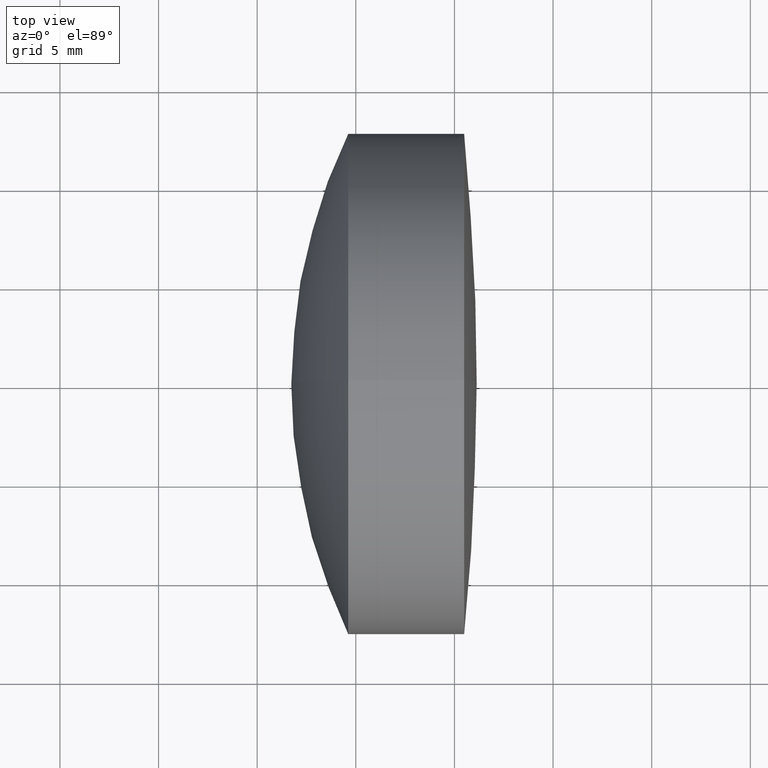
[diagram: clean part render]
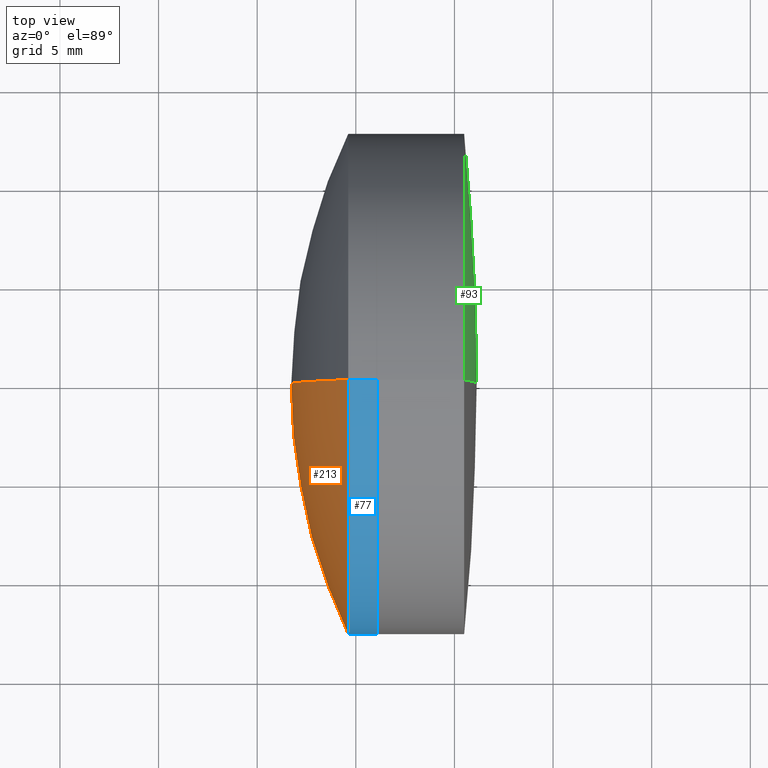
[diagram: same view with three faces highlighted in distinct colors, each labeled with its STEP entity id]
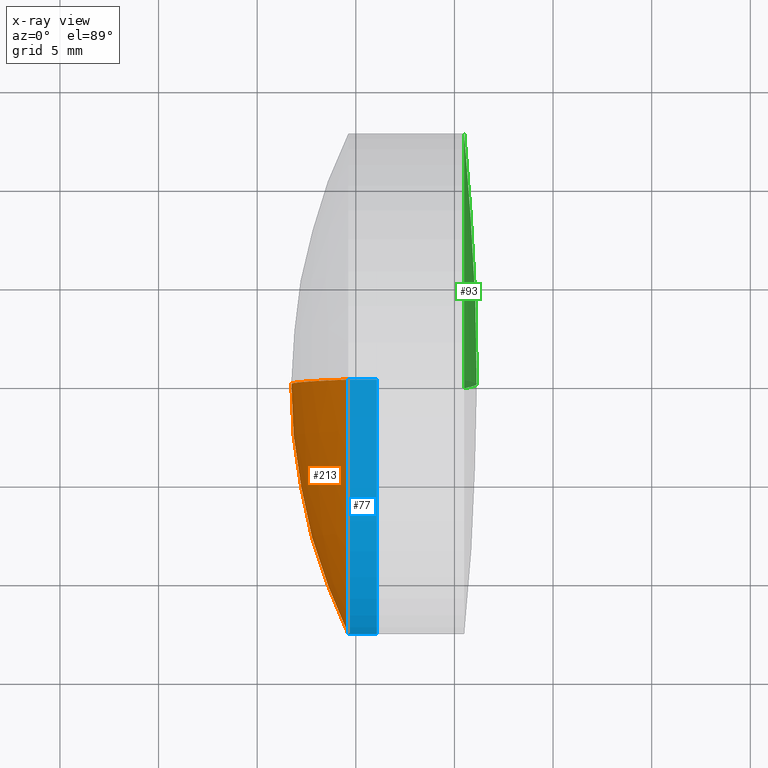
[diagram: x-ray of the same camera — body ghosted, the three highlighted faces saturated]
A machine part, top view with three faces highlighted in distinct colors.
The next image is the same camera in x-ray (body ghosted, the three faces saturated) — at least one of them is partly hidden behind the body in this view.
Their STEP definitions:

[orange] entity #213 — the highlighted spherical surface has radius 29.38 mm.
#7 = CARTESIAN_POINT ( 'NONE',  ( 311.1089865545652100, 0.0000000000000000000, 8.126185643377277200E-015 ) ) ;
#8 = AXIS2_PLACEMENT_3D ( 'NONE', #7, #26, #216 ) ;
#13 = CIRCLE ( 'NONE', #8, 29.38000000000002700 ) ;
#21 = SPHERICAL_SURFACE ( 'NONE', #305, 29.38000000000002700 ) ;
#26 = DIRECTION ( 'NONE',  ( 0.0000000000000000000, -1.000000000000000000, -1.224646799147353200E-016 ) ) ;
#42 = CIRCLE ( 'NONE', #127, 29.38000000000002700 ) ;
#45 = CARTESIAN_POINT ( 'NONE',  ( 284.6156968381105800, -1.555301434917138400E-015, 12.70000000000000600 ) ) ;
#81 = ORIENTED_EDGE ( 'NONE', *, *, #307, .T. ) ;
#83 = DIRECTION ( 'NONE',  ( -0.0000000000000000000, -1.000000000000000000, -0.0000000000000000000 ) ) ;
#86 = CIRCLE ( 'NONE', #184, 12.70000000000000600 ) ;
#91 = ORIENTED_EDGE ( 'NONE', *, *, #176, .F. ) ;
#102 = DIRECTION ( 'NONE',  ( 0.0000000000000000000, 0.0000000000000000000, -1.000000000000000000 ) ) ;
#108 = CARTESIAN_POINT ( 'NONE',  ( 311.1089865545652100, 0.0000000000000000000, 8.126185643377277200E-015 ) ) ;
#127 = AXIS2_PLACEMENT_3D ( 'NONE', #249, #221, #223 ) ;
#132 = CARTESIAN_POINT ( 'NONE',  ( 281.7289865545652100, 0.0000000000000000000, 6.327179495429814500E-015 ) ) ;
#135 = CARTESIAN_POINT ( 'NONE',  ( 284.6156968381105800, 0.0000000000000000000, -12.69999999999999900 ) ) ;
#175 = CARTESIAN_POINT ( 'NONE',  ( 284.6156968381105800, 0.0000000000000000000, 0.0000000000000000000 ) ) ;
#176 = EDGE_CURVE ( 'NONE', #292, #183, #42, .T. ) ;
#183 = VERTEX_POINT ( 'NONE', #132 ) ;
#184 = AXIS2_PLACEMENT_3D ( 'NONE', #175, #320, #290 ) ;
#213 = ADVANCED_FACE ( 'NONE', ( #313 ), #21, .T. ) ;
#215 = VERTEX_POINT ( 'NONE', #45 ) ;
#216 = DIRECTION ( 'NONE',  ( 0.0000000000000000000, 1.224646799147353200E-016, -1.000000000000000000 ) ) ;
#221 = DIRECTION ( 'NONE',  ( 0.0000000000000000000, 1.000000000000000000, -0.0000000000000000000 ) ) ;
#223 = DIRECTION ( 'NONE',  ( 0.0000000000000000000, 0.0000000000000000000, 1.000000000000000000 ) ) ;
#249 = CARTESIAN_POINT ( 'NONE',  ( 311.1089865545652100, 0.0000000000000000000, 8.126185643377277200E-015 ) ) ;
#260 = ORIENTED_EDGE ( 'NONE', *, *, #347, .T. ) ;
#290 = DIRECTION ( 'NONE',  ( 0.0000000000000000000, 0.0000000000000000000, 1.000000000000000000 ) ) ;
#292 = VERTEX_POINT ( 'NONE', #135 ) ;
#300 = EDGE_LOOP ( 'NONE', ( #260, #81, #91 ) ) ;
#305 = AXIS2_PLACEMENT_3D ( 'NONE', #108, #83, #102 ) ;
#307 = EDGE_CURVE ( 'NONE', #215, #183, #13, .T. ) ;
#313 = FACE_OUTER_BOUND ( 'NONE', #300, .T. ) ;
#320 = DIRECTION ( 'NONE',  ( -1.000000000000000000, -0.0000000000000000000, -0.0000000000000000000 ) ) ;
#347 = EDGE_CURVE ( 'NONE', #292, #215, #86, .T. ) ;

[blue] entity #77 — the highlighted cylindrical surface (partial cylindrical patch) has radius 12.7 mm, axis along (-1, -0, -0).
#17 = DIRECTION ( 'NONE',  ( -1.000000000000000000, -0.0000000000000000000, -0.0000000000000000000 ) ) ;
#19 = CARTESIAN_POINT ( 'NONE',  ( 286.0709410747099400, 0.0000000000000000000, 0.0000000000000000000 ) ) ;
#20 = EDGE_CURVE ( 'NONE', #226, #215, #171, .T. ) ;
#29 = CARTESIAN_POINT ( 'NONE',  ( 286.0709410747099400, 0.0000000000000000000, 12.70000000000000800 ) ) ;
#45 = CARTESIAN_POINT ( 'NONE',  ( 284.6156968381105800, -1.555301434917138400E-015, 12.70000000000000600 ) ) ;
#56 = VECTOR ( 'NONE', #243, 1000.000000000000000 ) ;
#58 = VECTOR ( 'NONE', #197, 1000.000000000000000 ) ;
#72 = DIRECTION ( 'NONE',  ( 0.0000000000000000000, 0.0000000000000000000, 1.000000000000000000 ) ) ;
#73 = FACE_OUTER_BOUND ( 'NONE', #296, .T. ) ;
#77 = ADVANCED_FACE ( 'NONE', ( #73 ), #180, .T. ) ;
#86 = CIRCLE ( 'NONE', #184, 12.70000000000000600 ) ;
#103 = CARTESIAN_POINT ( 'NONE',  ( 124.5233095260452400, 1.555301434917139200E-015, -12.70000000000000600 ) ) ;
#110 = AXIS2_PLACEMENT_3D ( 'NONE', #19, #17, #315 ) ;
#120 = VERTEX_POINT ( 'NONE', #270 ) ;
#134 = EDGE_CURVE ( 'NONE', #120, #292, #203, .T. ) ;
#135 = CARTESIAN_POINT ( 'NONE',  ( 284.6156968381105800, 0.0000000000000000000, -12.69999999999999900 ) ) ;
#152 = DIRECTION ( 'NONE',  ( -1.000000000000000000, -0.0000000000000000000, -0.0000000000000000000 ) ) ;
#171 = LINE ( 'NONE', #192, #56 ) ;
#173 = EDGE_CURVE ( 'NONE', #120, #226, #224, .T. ) ;
#175 = CARTESIAN_POINT ( 'NONE',  ( 284.6156968381105800, 0.0000000000000000000, 0.0000000000000000000 ) ) ;
#177 = ORIENTED_EDGE ( 'NONE', *, *, #347, .F. ) ;
#180 = CYLINDRICAL_SURFACE ( 'NONE', #322, 12.70000000000000600 ) ;
#181 = ORIENTED_EDGE ( 'NONE', *, *, #173, .T. ) ;
#184 = AXIS2_PLACEMENT_3D ( 'NONE', #175, #320, #290 ) ;
#192 = CARTESIAN_POINT ( 'NONE',  ( 124.5233095260452400, 0.0000000000000000000, 12.70000000000000600 ) ) ;
#197 = DIRECTION ( 'NONE',  ( -1.000000000000000000, -0.0000000000000000000, -0.0000000000000000000 ) ) ;
#203 = LINE ( 'NONE', #103, #58 ) ;
#215 = VERTEX_POINT ( 'NONE', #45 ) ;
#224 = CIRCLE ( 'NONE', #110, 12.70000000000000800 ) ;
#226 = VERTEX_POINT ( 'NONE', #29 ) ;
#238 = ORIENTED_EDGE ( 'NONE', *, *, #20, .T. ) ;
#243 = DIRECTION ( 'NONE',  ( -1.000000000000000000, -0.0000000000000000000, -0.0000000000000000000 ) ) ;
#270 = CARTESIAN_POINT ( 'NONE',  ( 286.0709410747099400, 1.555301434917139600E-015, -12.70000000000001000 ) ) ;
#290 = DIRECTION ( 'NONE',  ( 0.0000000000000000000, 0.0000000000000000000, 1.000000000000000000 ) ) ;
#292 = VERTEX_POINT ( 'NONE', #135 ) ;
#296 = EDGE_LOOP ( 'NONE', ( #336, #181, #238, #177 ) ) ;
#315 = DIRECTION ( 'NONE',  ( 0.0000000000000000000, 0.0000000000000000000, 1.000000000000000000 ) ) ;
#320 = DIRECTION ( 'NONE',  ( -1.000000000000000000, -0.0000000000000000000, -0.0000000000000000000 ) ) ;
#322 = AXIS2_PLACEMENT_3D ( 'NONE', #339, #152, #72 ) ;
#336 = ORIENTED_EDGE ( 'NONE', *, *, #134, .F. ) ;
#339 = CARTESIAN_POINT ( 'NONE',  ( 124.5233095260452400, 0.0000000000000000000, 0.0000000000000000000 ) ) ;
#347 = EDGE_CURVE ( 'NONE', #292, #215, #86, .T. ) ;

[green] entity #93 — the highlighted spherical surface has radius 127.06 mm.
#6 = CARTESIAN_POINT ( 'NONE',  ( 290.4926931922049700, 0.0000000000000000000, 12.70000000000000600 ) ) ;
#11 = AXIS2_PLACEMENT_3D ( 'NONE', #261, #141, #14 ) ;
#14 = DIRECTION ( 'NONE',  ( 0.0000000000000000000, 0.0000000000000000000, 1.000000000000000000 ) ) ;
#35 = AXIS2_PLACEMENT_3D ( 'NONE', #68, #61, #52 ) ;
#52 = DIRECTION ( 'NONE',  ( 0.0000000000000000000, 0.0000000000000000000, -1.000000000000000000 ) ) ;
#61 = DIRECTION ( 'NONE',  ( 0.0000000000000000000, -1.000000000000000000, 0.0000000000000000000 ) ) ;
#62 = CIRCLE ( 'NONE', #272, 127.0600000000000300 ) ;
#68 = CARTESIAN_POINT ( 'NONE',  ( 164.0689865545651600, 0.0000000000000000000, 0.0000000000000000000 ) ) ;
#71 = SPHERICAL_SURFACE ( 'NONE', #11, 127.0600000000000300 ) ;
#76 = CIRCLE ( 'NONE', #35, 127.0600000000000300 ) ;
#80 = EDGE_CURVE ( 'NONE', #250, #323, #62, .T. ) ;
#93 = ADVANCED_FACE ( 'NONE', ( #168 ), #71, .T. ) ;
#104 = ORIENTED_EDGE ( 'NONE', *, *, #117, .F. ) ;
#117 = EDGE_CURVE ( 'NONE', #250, #282, #76, .T. ) ;
#141 = DIRECTION ( 'NONE',  ( 0.0000000000000000000, 1.000000000000000000, 0.0000000000000000000 ) ) ;
#161 = CARTESIAN_POINT ( 'NONE',  ( 164.0689865545651600, 0.0000000000000000000, 0.0000000000000000000 ) ) ;
#166 = AXIS2_PLACEMENT_3D ( 'NONE', #193, #218, #291 ) ;
#168 = FACE_OUTER_BOUND ( 'NONE', #332, .T. ) ;
#193 = CARTESIAN_POINT ( 'NONE',  ( 290.4926931922049700, 0.0000000000000000000, 0.0000000000000000000 ) ) ;
#205 = CARTESIAN_POINT ( 'NONE',  ( 290.4926931922049700, 1.555301434917140000E-015, -12.70000000000000600 ) ) ;
#211 = DIRECTION ( 'NONE',  ( -0.0000000000000000000, 1.000000000000000000, 1.224646799147353200E-016 ) ) ;
#214 = ORIENTED_EDGE ( 'NONE', *, *, #327, .F. ) ;
#218 = DIRECTION ( 'NONE',  ( -1.000000000000000000, -0.0000000000000000000, -0.0000000000000000000 ) ) ;
#220 = CIRCLE ( 'NONE', #166, 12.70000000000000600 ) ;
#250 = VERTEX_POINT ( 'NONE', #341 ) ;
#261 = CARTESIAN_POINT ( 'NONE',  ( 164.0689865545651600, 0.0000000000000000000, 0.0000000000000000000 ) ) ;
#272 = AXIS2_PLACEMENT_3D ( 'NONE', #161, #211, #286 ) ;
#282 = VERTEX_POINT ( 'NONE', #6 ) ;
#286 = DIRECTION ( 'NONE',  ( 0.0000000000000000000, -1.224646799147353200E-016, 1.000000000000000000 ) ) ;
#291 = DIRECTION ( 'NONE',  ( 0.0000000000000000000, 0.0000000000000000000, 1.000000000000000000 ) ) ;
#323 = VERTEX_POINT ( 'NONE', #205 ) ;
#327 = EDGE_CURVE ( 'NONE', #282, #323, #220, .T. ) ;
#331 = ORIENTED_EDGE ( 'NONE', *, *, #80, .T. ) ;
#332 = EDGE_LOOP ( 'NONE', ( #104, #331, #214 ) ) ;
#341 = CARTESIAN_POINT ( 'NONE',  ( 291.1289865545651900, 0.0000000000000000000, 7.780181114983136500E-015 ) ) ;